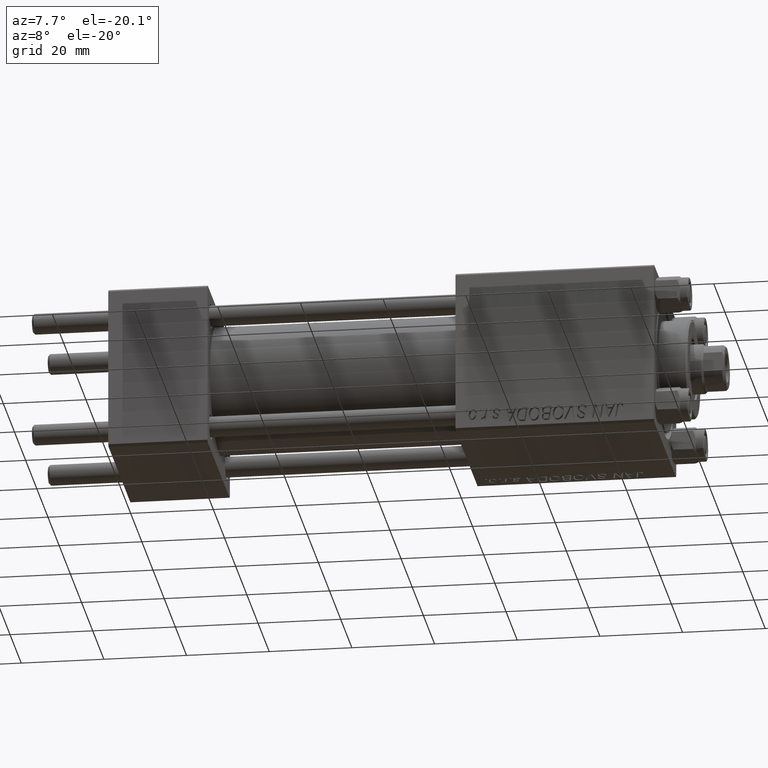
[diagram: clean part render]
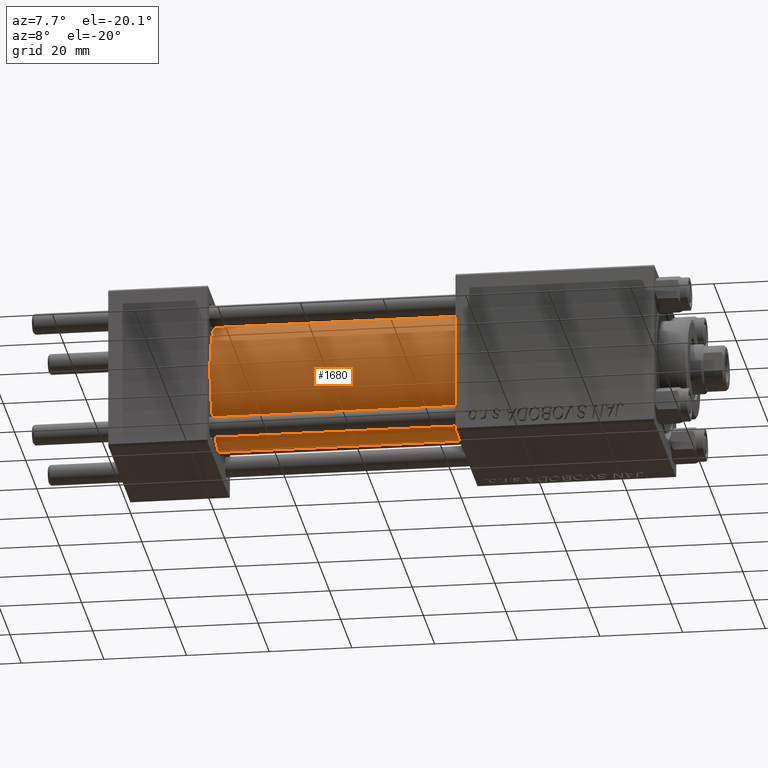
[diagram: same view with one face highlighted and labeled with its STEP entity id]
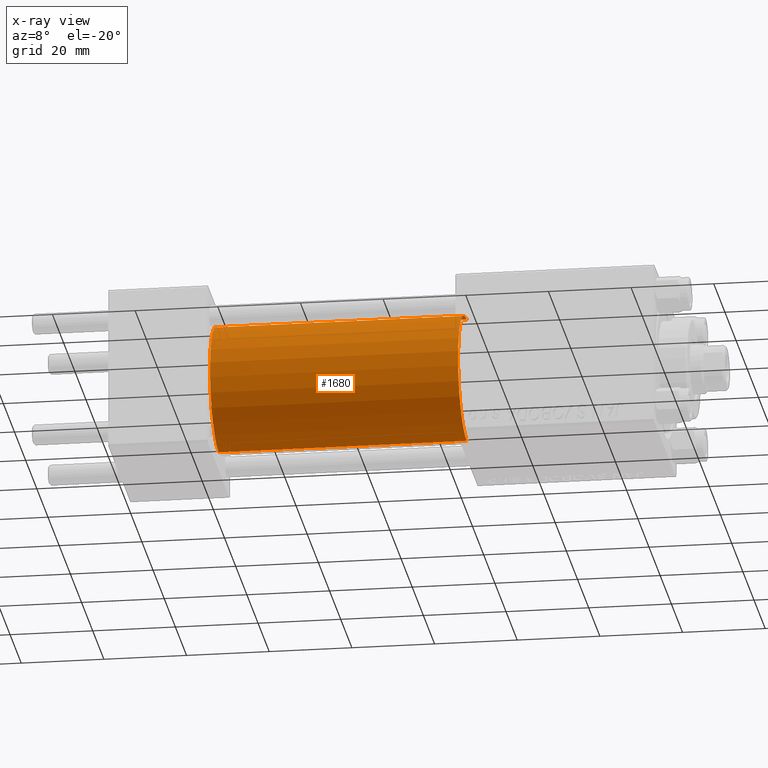
[diagram: x-ray of the same camera — body ghosted, the highlighted face saturated]
A machine part, auxiliary view. The second image highlights one B-rep face of the part: STEP entity #1680.
The next image is the same camera in x-ray: the body ghosted, the highlighted face saturated — about 0% of this face is hidden behind the body in this view.
In plain terms, the highlighted cylindrical surface (partial cylindrical patch) has radius 15.5 mm, axis along (-1, -0, -0).
Its self-contained STEP definition (entity closure, byte-faithful):
#1680 = ADVANCED_FACE ( 'NONE', ( #21888 ), #28934, .T. ) ;
#2487 = EDGE_CURVE ( 'NONE', #16301, #17725, #45953, .T. ) ;
#3551 = CARTESIAN_POINT ( 'NONE',  ( 24.00000000000000000, 0.000000000000000000, 15.50000000000000000 ) ) ;
#7846 = CARTESIAN_POINT ( 'NONE',  ( 24.00000000000000000, 1.898202538678397557E-15, -15.50000000000000000 ) ) ;
#9556 = DIRECTION ( 'NONE',  ( 0.000000000000000000, 0.000000000000000000, 1.000000000000000000 ) ) ;
#12427 = ORIENTED_EDGE ( 'NONE', *, *, #22337, .T. ) ;
#12653 = DIRECTION ( 'NONE',  ( 1.000000000000000000, 0.000000000000000000, 0.000000000000000000 ) ) ;
#13531 = VERTEX_POINT ( 'NONE', #7846 ) ;
#16301 = VERTEX_POINT ( 'NONE', #37934 ) ;
#16634 = EDGE_CURVE ( 'NONE', #17725, #13531, #23020, .T. ) ;
#16799 = EDGE_LOOP ( 'NONE', ( #44702, #41410, #12427, #41296 ) ) ;
#17725 = VERTEX_POINT ( 'NONE', #21032 ) ;
#20199 = CARTESIAN_POINT ( 'NONE',  ( 24.00000000000000000, 0.000000000000000000, 0.000000000000000000 ) ) ;
#20266 = LINE ( 'NONE', #20517, #48756 ) ;
#20517 = CARTESIAN_POINT ( 'NONE',  ( 83.99999999999998579, 0.000000000000000000, 15.50000000000000000 ) ) ;
#20650 = DIRECTION ( 'NONE',  ( 0.000000000000000000, 0.000000000000000000, -1.000000000000000000 ) ) ;
#20822 = CIRCLE ( 'NONE', #47389, 15.50000000000000000 ) ;
#21032 = CARTESIAN_POINT ( 'NONE',  ( 83.99999999999998579, 1.898202538678397557E-15, -15.50000000000000000 ) ) ;
#21888 = FACE_OUTER_BOUND ( 'NONE', #16799, .T. ) ;
#22337 = EDGE_CURVE ( 'NONE', #16301, #32858, #20266, .T. ) ;
#23020 = LINE ( 'NONE', #41654, #32601 ) ;
#25437 = CARTESIAN_POINT ( 'NONE',  ( 83.99999999999998579, 0.000000000000000000, 0.000000000000000000 ) ) ;
#26046 = EDGE_CURVE ( 'NONE', #32858, #13531, #20822, .T. ) ;
#27946 = DIRECTION ( 'NONE',  ( 1.000000000000000000, 0.000000000000000000, 0.000000000000000000 ) ) ;
#28310 = DIRECTION ( 'NONE',  ( -1.000000000000000000, -0.000000000000000000, -0.000000000000000000 ) ) ;
#28934 = CYLINDRICAL_SURFACE ( 'NONE', #48367, 15.50000000000000000 ) ;
#29690 = DIRECTION ( 'NONE',  ( -1.000000000000000000, -0.000000000000000000, -0.000000000000000000 ) ) ;
#29893 = AXIS2_PLACEMENT_3D ( 'NONE', #47096, #27946, #20650 ) ;
#30320 = DIRECTION ( 'NONE',  ( -1.000000000000000000, -0.000000000000000000, -0.000000000000000000 ) ) ;
#32601 = VECTOR ( 'NONE', #30320, 1000.000000000000000 ) ;
#32858 = VERTEX_POINT ( 'NONE', #3551 ) ;
#37934 = CARTESIAN_POINT ( 'NONE',  ( 83.99999999999998579, 0.000000000000000000, 15.50000000000000000 ) ) ;
#41296 = ORIENTED_EDGE ( 'NONE', *, *, #26046, .T. ) ;
#41410 = ORIENTED_EDGE ( 'NONE', *, *, #2487, .F. ) ;
#41654 = CARTESIAN_POINT ( 'NONE',  ( 83.99999999999998579, 1.898202538678397557E-15, -15.50000000000000000 ) ) ;
#44702 = ORIENTED_EDGE ( 'NONE', *, *, #16634, .F. ) ;
#45953 = CIRCLE ( 'NONE', #29893, 15.50000000000000000 ) ;
#47096 = CARTESIAN_POINT ( 'NONE',  ( 83.99999999999998579, 0.000000000000000000, 0.000000000000000000 ) ) ;
#47147 = DIRECTION ( 'NONE',  ( 0.000000000000000000, 0.000000000000000000, 1.000000000000000000 ) ) ;
#47389 = AXIS2_PLACEMENT_3D ( 'NONE', #20199, #12653, #47147 ) ;
#48367 = AXIS2_PLACEMENT_3D ( 'NONE', #25437, #29690, #9556 ) ;
#48756 = VECTOR ( 'NONE', #28310, 1000.000000000000000 ) ;